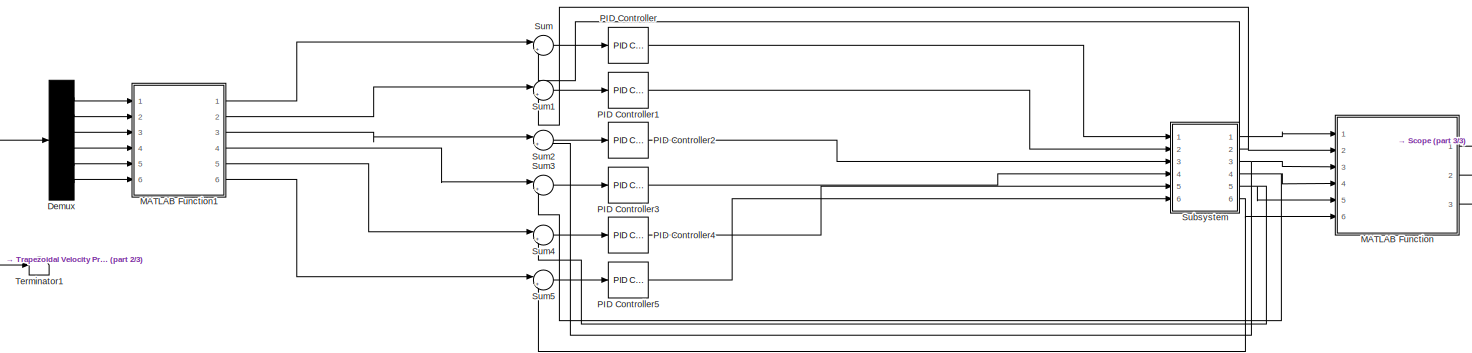
[diagram: root canvas - part 1/3, most of the canvas]
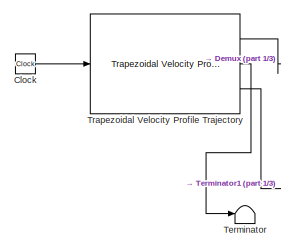
[diagram: root canvas - part 2/3, middle left region]
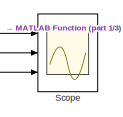
[diagram: root canvas - part 3/3, middle right region]
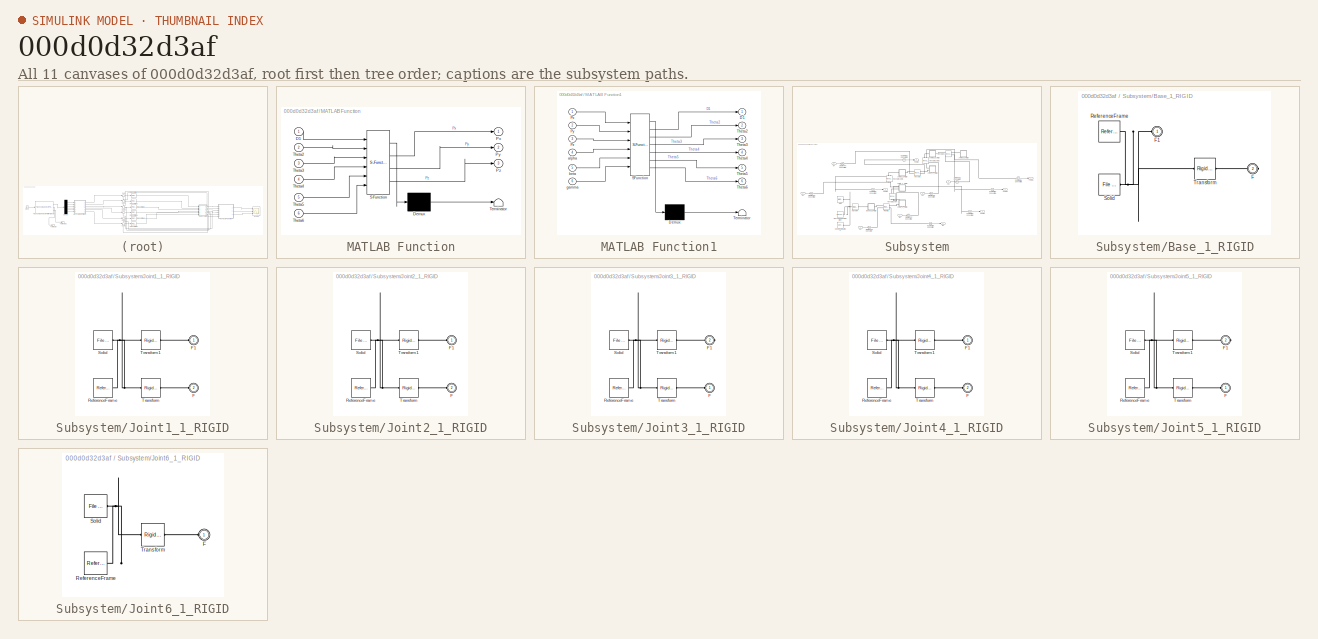
[diagram: thumbnail index - all 11 canvases of the model, root first then tree order]
MODEL slx_000d0d32d3af
KIND model
CONFIG AbsTol = auto
CONFIG EnableMultiTasking = off
CONFIG FixedStep = auto
CONFIG MaxStep = auto
CONFIG MinStep = auto
CONFIG RelTol = 1e-3
CONFIG SampleTimeConstraint = Unconstrained
CONFIG SolverName = VariableStepAuto
CONFIG StartTime = 0.0
CONFIG StopTime = 15
WORKSPACE source: external: MATLAB File  (data not in archive)
BLOCK [Clock] Clock
BLOCK [Demux] Demux
  Outputs = 6
  Ports = [1, 6]
BLOCK [SubSystem] MATLAB Function
  ErrorFcn = Stateflow.Translate.translate
  PermitHierarchicalResolution = ExplicitOnly
  Ports = [6, 3]
  RequestExecContextInheritance = off
  SFBlockType = MATLAB Function
  TreatAsAtomicUnit = on
BLOCK [Demux] MATLAB Function/ Demux 
  Outputs = 1
  Ports = [1, 1]
BLOCK [S-Function] MATLAB Function/ SFunction 
  EnableBusSupport = on
  FunctionName = sf_sfun
  PortCounts = [6 4]
  Ports = [6, 4]
  SFcnIsStateOwnerBlock = off
  SFunctionDeploymentMode = off
  Tag = Stateflow S-Function 2
BLOCK [Terminator] MATLAB Function/ Terminator 
BLOCK [Inport] MATLAB Function/D1
BLOCK [Outport] MATLAB Function/Px
BLOCK [Outport] MATLAB Function/Py
  Port = 2
BLOCK [Outport] MATLAB Function/Pz
  Port = 3
BLOCK [Inport] MATLAB Function/Theta2
  Port = 2
BLOCK [Inport] MATLAB Function/Theta3
  Port = 3
BLOCK [Inport] MATLAB Function/Theta4
  Port = 4
BLOCK [Inport] MATLAB Function/Theta5
  Port = 5
BLOCK [Inport] MATLAB Function/Theta6
  Port = 6
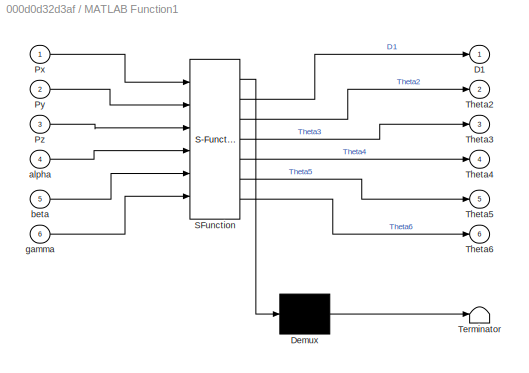
BLOCK [SubSystem] MATLAB Function1
  ErrorFcn = Stateflow.Translate.translate
  PermitHierarchicalResolution = ExplicitOnly
  Ports = [6, 6]
  RequestExecContextInheritance = off
  SFBlockType = MATLAB Function
  TreatAsAtomicUnit = on
BLOCK [Demux] MATLAB Function1/ Demux 
  Outputs = 1
  Ports = [1, 1]
BLOCK [S-Function] MATLAB Function1/ SFunction 
  EnableBusSupport = on
  FunctionName = sf_sfun
  PortCounts = [6 7]
  Ports = [6, 7]
  SFcnIsStateOwnerBlock = off
  SFunctionDeploymentMode = off
  Tag = Stateflow S-Function 1
BLOCK [Terminator] MATLAB Function1/ Terminator 
BLOCK [Outport] MATLAB Function1/D1
BLOCK [Inport] MATLAB Function1/Px
BLOCK [Inport] MATLAB Function1/Py
  Port = 2
BLOCK [Inport] MATLAB Function1/Pz
  Port = 3
BLOCK [Outport] MATLAB Function1/Theta2
  Port = 2
BLOCK [Outport] MATLAB Function1/Theta3
  Port = 3
BLOCK [Outport] MATLAB Function1/Theta4
  Port = 4
BLOCK [Outport] MATLAB Function1/Theta5
  Port = 5
BLOCK [Outport] MATLAB Function1/Theta6
  Port = 6
BLOCK [Inport] MATLAB Function1/alpha
  Port = 4
BLOCK [Inport] MATLAB Function1/beta
  Port = 5
BLOCK [Inport] MATLAB Function1/gamma
  Port = 6
BLOCK [Reference] PID Controller  REF=slpidlib/PID Controller
  Ports = [1, 1]
  SourceBlock = slpidlib/PID Controller
  SourceProductBaseCode = SL
  SourceType = PID 1dof
BLOCK [Reference] PID Controller1  REF=slpidlib/PID Controller
  Ports = [1, 1]
  SourceBlock = slpidlib/PID Controller
  SourceProductBaseCode = SL
  SourceType = PID 1dof
BLOCK [Reference] PID Controller2  REF=slpidlib/PID Controller
  Ports = [1, 1]
  SourceBlock = slpidlib/PID Controller
  SourceProductBaseCode = SL
  SourceType = PID 1dof
BLOCK [Reference] PID Controller3  REF=slpidlib/PID Controller
  Ports = [1, 1]
  SourceBlock = slpidlib/PID Controller
  SourceProductBaseCode = SL
  SourceType = PID 1dof
BLOCK [Reference] PID Controller4  REF=slpidlib/PID Controller
  Ports = [1, 1]
  SourceBlock = slpidlib/PID Controller
  SourceProductBaseCode = SL
  SourceType = PID 1dof
BLOCK [Reference] PID Controller5  REF=slpidlib/PID Controller
  Ports = [1, 1]
  SourceBlock = slpidlib/PID Controller
  SourceProductBaseCode = SL
  SourceType = PID 1dof
BLOCK [Scope] Scope
  Floating = off
  NumInputPorts = 3
  Ports = [3]
  ScopeSpecificationString = Simulink.scopes.TimeScopeBlockCfg('CurrentConfiguration', extmgr.ConfigurationSet(extmgr.Configuration('Core','General UI',true),extmgr.Configuration('Core','Source UI',true),extmgr.Configuration('Sources','WiredSimulink',true),extmgr.Configuration('Visuals','Time Domain',true,'SerializedDisplays',{struct('MinYLimReal','218.71464','MaxYLimReal','420.11442','YLabelReal','','MinYLimMag','218.71464',...<+3067ch>
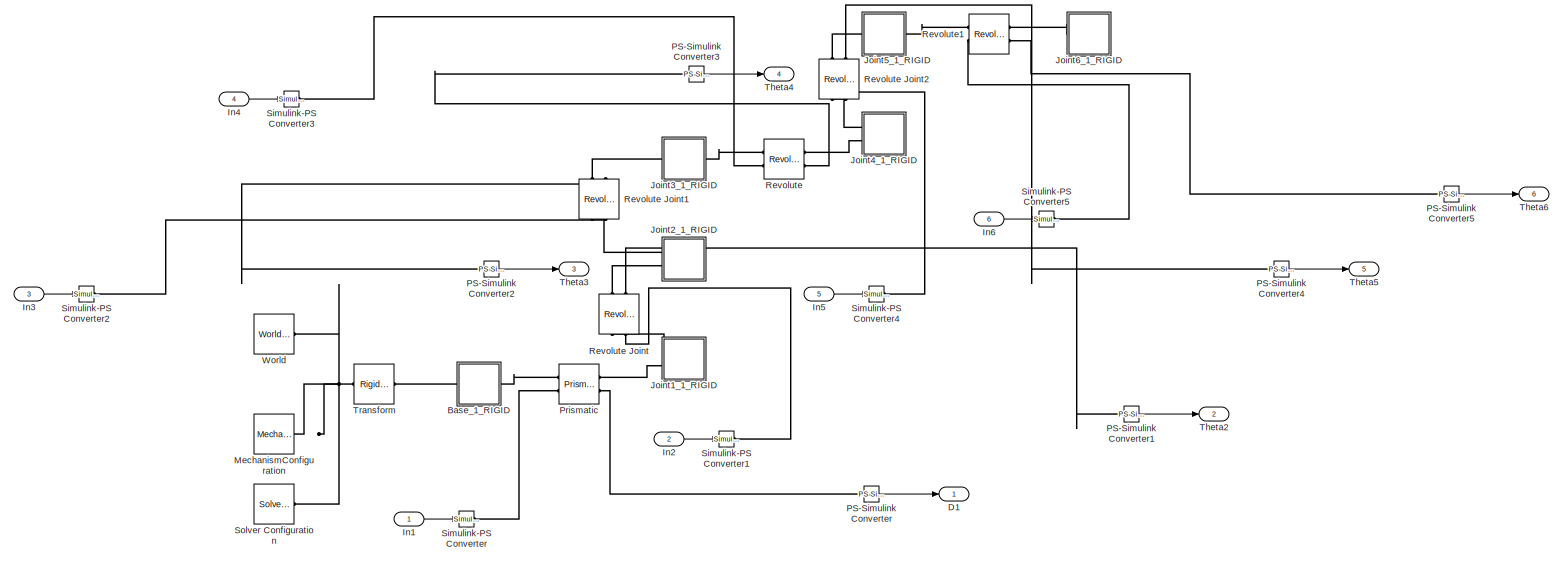
[diagram: Subsystem - part 1/1, most of the canvas]
BLOCK [SubSystem] Subsystem
  Ports = [6, 6]
  RequestExecContextInheritance = off
BLOCK [SubSystem] Subsystem/Base_1_RIGID
  Ports = [0, 0, 0, 0, 0, 1, 1]
  RequestExecContextInheritance = off
BLOCK [PMIOPort] Subsystem/Base_1_RIGID/F
  Port = 2
  Side = Right
BLOCK [PMIOPort] Subsystem/Base_1_RIGID/F1
  Side = Left
BLOCK [Reference] Subsystem/Base_1_RIGID/ReferenceFrame  REF=sm_lib/Frames and
Transforms/Reference
Frame
  Ports = [0, 0, 0, 0, 0, 0, 1]
  SourceBlock = sm_lib/Frames and\nTransforms/Reference\nFrame
  SourceProductBaseCode = MS
  SourceType = Reference\nFrame
BLOCK [Reference] Subsystem/Base_1_RIGID/Solid  REF=sm_lib/Body Elements/File Solid
  Ports = [0, 0, 0, 0, 0, 1, 1]
  SourceBlock = sm_lib/Body Elements/File Solid
  SourceProductBaseCode = MS
  SourceType = File Solid
BLOCK [Reference] Subsystem/Base_1_RIGID/Transform  REF=sm_lib/Frames and
Transforms/Rigid
Transform
  Ports = [0, 0, 0, 0, 0, 1, 1]
  SourceBlock = sm_lib/Frames and\nTransforms/Rigid\nTransform
  SourceProductBaseCode = MS
  SourceType = Rigid\nTransform
BLOCK [Outport] Subsystem/D1
BLOCK [Inport] Subsystem/In1
BLOCK [Inport] Subsystem/In2
  Port = 2
BLOCK [Inport] Subsystem/In3
  Port = 3
BLOCK [Inport] Subsystem/In4
  Port = 4
BLOCK [Inport] Subsystem/In5
  Port = 5
BLOCK [Inport] Subsystem/In6
  Port = 6
BLOCK [SubSystem] Subsystem/Joint1_1_RIGID
  Ports = [0, 0, 0, 0, 0, 2]
  RequestExecContextInheritance = off
BLOCK [PMIOPort] Subsystem/Joint1_1_RIGID/F
  Port = 2
  Side = Left
BLOCK [PMIOPort] Subsystem/Joint1_1_RIGID/F1
  Side = Left
BLOCK [Reference] Subsystem/Joint1_1_RIGID/ReferenceFrame  REF=sm_lib/Frames and
Transforms/Reference
Frame
  Ports = [0, 0, 0, 0, 0, 0, 1]
  SourceBlock = sm_lib/Frames and\nTransforms/Reference\nFrame
  SourceProductBaseCode = MS
  SourceType = Reference\nFrame
BLOCK [Reference] Subsystem/Joint1_1_RIGID/Solid  REF=sm_lib/Body Elements/File Solid
  Ports = [0, 0, 0, 0, 0, 0, 1]
  SourceBlock = sm_lib/Body Elements/File Solid
  SourceProductBaseCode = MS
  SourceType = File Solid
BLOCK [Reference] Subsystem/Joint1_1_RIGID/Transform  REF=sm_lib/Frames and
Transforms/Rigid
Transform
  Ports = [0, 0, 0, 0, 0, 1, 1]
  SourceBlock = sm_lib/Frames and\nTransforms/Rigid\nTransform
  SourceProductBaseCode = MS
  SourceType = Rigid\nTransform
BLOCK [Reference] Subsystem/Joint1_1_RIGID/Transform1  REF=sm_lib/Frames and
Transforms/Rigid
Transform
  Ports = [0, 0, 0, 0, 0, 1, 1]
  SourceBlock = sm_lib/Frames and\nTransforms/Rigid\nTransform
  SourceProductBaseCode = MS
  SourceType = Rigid\nTransform
BLOCK [SubSystem] Subsystem/Joint2_1_RIGID
  Ports = [0, 0, 0, 0, 0, 2]
  RequestExecContextInheritance = off
BLOCK [PMIOPort] Subsystem/Joint2_1_RIGID/F
  Port = 2
  Side = Left
BLOCK [PMIOPort] Subsystem/Joint2_1_RIGID/F1
  Side = Left
BLOCK [Reference] Subsystem/Joint2_1_RIGID/ReferenceFrame  REF=sm_lib/Frames and
Transforms/Reference
Frame
  Ports = [0, 0, 0, 0, 0, 0, 1]
  SourceBlock = sm_lib/Frames and\nTransforms/Reference\nFrame
  SourceProductBaseCode = MS
  SourceType = Reference\nFrame
BLOCK [Reference] Subsystem/Joint2_1_RIGID/Solid  REF=sm_lib/Body Elements/File Solid
  Ports = [0, 0, 0, 0, 0, 1, 1]
  SourceBlock = sm_lib/Body Elements/File Solid
  SourceProductBaseCode = MS
  SourceType = File Solid
BLOCK [Reference] Subsystem/Joint2_1_RIGID/Transform  REF=sm_lib/Frames and
Transforms/Rigid
Transform
  Ports = [0, 0, 0, 0, 0, 1, 1]
  SourceBlock = sm_lib/Frames and\nTransforms/Rigid\nTransform
  SourceProductBaseCode = MS
  SourceType = Rigid\nTransform
BLOCK [Reference] Subsystem/Joint2_1_RIGID/Transform1  REF=sm_lib/Frames and
Transforms/Rigid
Transform
  Ports = [0, 0, 0, 0, 0, 1, 1]
  SourceBlock = sm_lib/Frames and\nTransforms/Rigid\nTransform
  SourceProductBaseCode = MS
  SourceType = Rigid\nTransform
BLOCK [SubSystem] Subsystem/Joint3_1_RIGID
  Ports = [0, 0, 0, 0, 0, 1, 1]
  RequestExecContextInheritance = off
BLOCK [PMIOPort] Subsystem/Joint3_1_RIGID/F
  Side = Left
BLOCK [PMIOPort] Subsystem/Joint3_1_RIGID/F1
  Port = 2
  Side = Right
BLOCK [Reference] Subsystem/Joint3_1_RIGID/ReferenceFrame  REF=sm_lib/Frames and
Transforms/Reference
Frame
  Ports = [0, 0, 0, 0, 0, 0, 1]
  SourceBlock = sm_lib/Frames and\nTransforms/Reference\nFrame
  SourceProductBaseCode = MS
  SourceType = Reference\nFrame
BLOCK [Reference] Subsystem/Joint3_1_RIGID/Solid  REF=sm_lib/Body Elements/File Solid
  Ports = [0, 0, 0, 0, 0, 0, 1]
  SourceBlock = sm_lib/Body Elements/File Solid
  SourceProductBaseCode = MS
  SourceType = File Solid
BLOCK [Reference] Subsystem/Joint3_1_RIGID/Transform  REF=sm_lib/Frames and
Transforms/Rigid
Transform
  Ports = [0, 0, 0, 0, 0, 1, 1]
  SourceBlock = sm_lib/Frames and\nTransforms/Rigid\nTransform
  SourceProductBaseCode = MS
  SourceType = Rigid\nTransform
BLOCK [Reference] Subsystem/Joint3_1_RIGID/Transform1  REF=sm_lib/Frames and
Transforms/Rigid
Transform
  Ports = [0, 0, 0, 0, 0, 1, 1]
  SourceBlock = sm_lib/Frames and\nTransforms/Rigid\nTransform
  SourceProductBaseCode = MS
  SourceType = Rigid\nTransform
BLOCK [SubSystem] Subsystem/Joint4_1_RIGID
  Ports = [0, 0, 0, 0, 0, 2]
  RequestExecContextInheritance = off
BLOCK [PMIOPort] Subsystem/Joint4_1_RIGID/F
  Port = 2
  Side = Left
BLOCK [PMIOPort] Subsystem/Joint4_1_RIGID/F1
  Side = Left
BLOCK [Reference] Subsystem/Joint4_1_RIGID/ReferenceFrame  REF=sm_lib/Frames and
Transforms/Reference
Frame
  Ports = [0, 0, 0, 0, 0, 0, 1]
  SourceBlock = sm_lib/Frames and\nTransforms/Reference\nFrame
  SourceProductBaseCode = MS
  SourceType = Reference\nFrame
BLOCK [Reference] Subsystem/Joint4_1_RIGID/Solid  REF=sm_lib/Body Elements/File Solid
  Ports = [0, 0, 0, 0, 0, 0, 1]
  SourceBlock = sm_lib/Body Elements/File Solid
  SourceProductBaseCode = MS
  SourceType = File Solid
BLOCK [Reference] Subsystem/Joint4_1_RIGID/Transform  REF=sm_lib/Frames and
Transforms/Rigid
Transform
  Ports = [0, 0, 0, 0, 0, 1, 1]
  SourceBlock = sm_lib/Frames and\nTransforms/Rigid\nTransform
  SourceProductBaseCode = MS
  SourceType = Rigid\nTransform
BLOCK [Reference] Subsystem/Joint4_1_RIGID/Transform1  REF=sm_lib/Frames and
Transforms/Rigid
Transform
  Ports = [0, 0, 0, 0, 0, 1, 1]
  SourceBlock = sm_lib/Frames and\nTransforms/Rigid\nTransform
  SourceProductBaseCode = MS
  SourceType = Rigid\nTransform
BLOCK [SubSystem] Subsystem/Joint5_1_RIGID
  Ports = [0, 0, 0, 0, 0, 1, 1]
  RequestExecContextInheritance = off
BLOCK [PMIOPort] Subsystem/Joint5_1_RIGID/F
  Side = Left
BLOCK [PMIOPort] Subsystem/Joint5_1_RIGID/F1
  Port = 2
  Side = Right
BLOCK [Reference] Subsystem/Joint5_1_RIGID/ReferenceFrame  REF=sm_lib/Frames and
Transforms/Reference
Frame
  Ports = [0, 0, 0, 0, 0, 0, 1]
  SourceBlock = sm_lib/Frames and\nTransforms/Reference\nFrame
  SourceProductBaseCode = MS
  SourceType = Reference\nFrame
BLOCK [Reference] Subsystem/Joint5_1_RIGID/Solid  REF=sm_lib/Body Elements/File Solid
  Ports = [0, 0, 0, 0, 0, 0, 1]
  SourceBlock = sm_lib/Body Elements/File Solid
  SourceProductBaseCode = MS
  SourceType = File Solid
BLOCK [Reference] Subsystem/Joint5_1_RIGID/Transform  REF=sm_lib/Frames and
Transforms/Rigid
Transform
  Ports = [0, 0, 0, 0, 0, 1, 1]
  SourceBlock = sm_lib/Frames and\nTransforms/Rigid\nTransform
  SourceProductBaseCode = MS
  SourceType = Rigid\nTransform
BLOCK [Reference] Subsystem/Joint5_1_RIGID/Transform1  REF=sm_lib/Frames and
Transforms/Rigid
Transform
  Ports = [0, 0, 0, 0, 0, 1, 1]
  SourceBlock = sm_lib/Frames and\nTransforms/Rigid\nTransform
  SourceProductBaseCode = MS
  SourceType = Rigid\nTransform
BLOCK [SubSystem] Subsystem/Joint6_1_RIGID
  Ports = [0, 0, 0, 0, 0, 1]
  RequestExecContextInheritance = off
BLOCK [PMIOPort] Subsystem/Joint6_1_RIGID/F
  Side = Left
BLOCK [Reference] Subsystem/Joint6_1_RIGID/ReferenceFrame  REF=sm_lib/Frames and
Transforms/Reference
Frame
  Ports = [0, 0, 0, 0, 0, 0, 1]
  SourceBlock = sm_lib/Frames and\nTransforms/Reference\nFrame
  SourceProductBaseCode = MS
  SourceType = Reference\nFrame
BLOCK [Reference] Subsystem/Joint6_1_RIGID/Solid  REF=sm_lib/Body Elements/File Solid
  Ports = [0, 0, 0, 0, 0, 0, 1]
  SourceBlock = sm_lib/Body Elements/File Solid
  SourceProductBaseCode = MS
  SourceType = File Solid
BLOCK [Reference] Subsystem/Joint6_1_RIGID/Transform  REF=sm_lib/Frames and
Transforms/Rigid
Transform
  Ports = [0, 0, 0, 0, 0, 1, 1]
  SourceBlock = sm_lib/Frames and\nTransforms/Rigid\nTransform
  SourceProductBaseCode = MS
  SourceType = Rigid\nTransform
BLOCK [Reference] Subsystem/MechanismConfiguration  REF=sm_lib/Utilities/Mechanism
Configuration
  Ports = [0, 0, 0, 0, 0, 0, 1]
  SourceBlock = sm_lib/Utilities/Mechanism\nConfiguration
  SourceProductBaseCode = MS
  SourceType = Mechanism\nConfiguration
BLOCK [Reference] Subsystem/PS-Simulink Converter  REF=nesl_utility/PS-Simulink
Converter
  Ports = [0, 1, 0, 0, 0, 1]
  SourceBlock = nesl_utility/PS-Simulink\nConverter
  SourceProductBaseCode = SS,PW,VE
  SourceType = PS-Simulink\nConverter
BLOCK [Reference] Subsystem/PS-Simulink Converter1  REF=nesl_utility/PS-Simulink
Converter
  Ports = [0, 1, 0, 0, 0, 1]
  SourceBlock = nesl_utility/PS-Simulink\nConverter
  SourceProductBaseCode = SS,PW,VE
  SourceType = PS-Simulink\nConverter
BLOCK [Reference] Subsystem/PS-Simulink Converter2  REF=nesl_utility/PS-Simulink
Converter
  Ports = [0, 1, 0, 0, 0, 1]
  SourceBlock = nesl_utility/PS-Simulink\nConverter
  SourceProductBaseCode = SS,PW,VE
  SourceType = PS-Simulink\nConverter
BLOCK [Reference] Subsystem/PS-Simulink Converter3  REF=nesl_utility/PS-Simulink
Converter
  Ports = [0, 1, 0, 0, 0, 1]
  SourceBlock = nesl_utility/PS-Simulink\nConverter
  SourceProductBaseCode = SS,PW,VE
  SourceType = PS-Simulink\nConverter
BLOCK [Reference] Subsystem/PS-Simulink Converter4  REF=nesl_utility/PS-Simulink
Converter
  Ports = [0, 1, 0, 0, 0, 1]
  SourceBlock = nesl_utility/PS-Simulink\nConverter
  SourceProductBaseCode = SS,PW,VE
  SourceType = PS-Simulink\nConverter
BLOCK [Reference] Subsystem/PS-Simulink Converter5  REF=nesl_utility/PS-Simulink
Converter
  Ports = [0, 1, 0, 0, 0, 1]
  SourceBlock = nesl_utility/PS-Simulink\nConverter
  SourceProductBaseCode = SS,PW,VE
  SourceType = PS-Simulink\nConverter
BLOCK [Reference] Subsystem/Prismatic  REF=sm_lib/Joints/Prismatic
Joint
  Ports = [0, 0, 0, 0, 0, 2, 2]
  SourceBlock = sm_lib/Joints/Prismatic\nJoint
  SourceProductBaseCode = MS
  SourceType = Prismatic\nJoint
BLOCK [Reference] Subsystem/Revolute  REF=sm_lib/Joints/Revolute Joint
  Ports = [0, 0, 0, 0, 0, 2, 2]
  SourceBlock = sm_lib/Joints/Revolute Joint
  SourceProductBaseCode = MS
  SourceType = Revolute Joint
BLOCK [Reference] Subsystem/Revolute Joint  REF=sm_lib/Joints/Revolute Joint
  NameLocation = right
  Ports = [0, 0, 0, 0, 0, 2, 2]
  SourceBlock = sm_lib/Joints/Revolute Joint
  SourceProductBaseCode = MS
  SourceType = Revolute Joint
BLOCK [Reference] Subsystem/Revolute Joint1  REF=sm_lib/Joints/Revolute Joint
  NameLocation = right
  Ports = [0, 0, 0, 0, 0, 2, 2]
  SourceBlock = sm_lib/Joints/Revolute Joint
  SourceProductBaseCode = MS
  SourceType = Revolute Joint
BLOCK [Reference] Subsystem/Revolute Joint2  REF=sm_lib/Joints/Revolute Joint
  NameLocation = right
  Ports = [0, 0, 0, 0, 0, 2, 2]
  SourceBlock = sm_lib/Joints/Revolute Joint
  SourceProductBaseCode = MS
  SourceType = Revolute Joint
BLOCK [Reference] Subsystem/Revolute1  REF=sm_lib/Joints/Revolute Joint
  Ports = [0, 0, 0, 0, 0, 2, 2]
  SourceBlock = sm_lib/Joints/Revolute Joint
  SourceProductBaseCode = MS
  SourceType = Revolute Joint
BLOCK [Reference] Subsystem/Simulink-PS Converter  REF=nesl_utility/Simulink-PS
Converter
  Ports = [1, 0, 0, 0, 0, 0, 1]
  SourceBlock = nesl_utility/Simulink-PS\nConverter
  SourceProductBaseCode = SS,PW,VE
  SourceType = Simulink-PS\nConverter
BLOCK [Reference] Subsystem/Simulink-PS Converter1  REF=nesl_utility/Simulink-PS
Converter
  Ports = [1, 0, 0, 0, 0, 0, 1]
  SourceBlock = nesl_utility/Simulink-PS\nConverter
  SourceProductBaseCode = SS,PW,VE
  SourceType = Simulink-PS\nConverter
BLOCK [Reference] Subsystem/Simulink-PS Converter2  REF=nesl_utility/Simulink-PS
Converter
  Ports = [1, 0, 0, 0, 0, 0, 1]
  SourceBlock = nesl_utility/Simulink-PS\nConverter
  SourceProductBaseCode = SS,PW,VE
  SourceType = Simulink-PS\nConverter
BLOCK [Reference] Subsystem/Simulink-PS Converter3  REF=nesl_utility/Simulink-PS
Converter
  Ports = [1, 0, 0, 0, 0, 0, 1]
  SourceBlock = nesl_utility/Simulink-PS\nConverter
  SourceProductBaseCode = SS,PW,VE
  SourceType = Simulink-PS\nConverter
BLOCK [Reference] Subsystem/Simulink-PS Converter4  REF=nesl_utility/Simulink-PS
Converter
  Ports = [1, 0, 0, 0, 0, 0, 1]
  SourceBlock = nesl_utility/Simulink-PS\nConverter
  SourceProductBaseCode = SS,PW,VE
  SourceType = Simulink-PS\nConverter
BLOCK [Reference] Subsystem/Simulink-PS Converter5  REF=nesl_utility/Simulink-PS
Converter
  Ports = [1, 0, 0, 0, 0, 0, 1]
  SourceBlock = nesl_utility/Simulink-PS\nConverter
  SourceProductBaseCode = SS,PW,VE
  SourceType = Simulink-PS\nConverter
BLOCK [Reference] Subsystem/Solver Configuration  REF=nesl_utility/Solver
Configuration
  Ports = [0, 0, 0, 0, 0, 0, 1]
  SourceBlock = nesl_utility/Solver\nConfiguration
  SourceProductBaseCode = SS,PW,VE
  SourceType = Solver\nConfiguration
BLOCK [Outport] Subsystem/Theta2
  Port = 2
BLOCK [Outport] Subsystem/Theta3
  Port = 3
BLOCK [Outport] Subsystem/Theta4
  Port = 4
BLOCK [Outport] Subsystem/Theta5
  Port = 5
BLOCK [Outport] Subsystem/Theta6
  Port = 6
BLOCK [Reference] Subsystem/Transform  REF=sm_lib/Frames and
Transforms/Rigid
Transform
  Ports = [0, 0, 0, 0, 0, 1, 1]
  SourceBlock = sm_lib/Frames and\nTransforms/Rigid\nTransform
  SourceProductBaseCode = MS
  SourceType = Rigid\nTransform
BLOCK [Reference] Subsystem/World  REF=sm_lib/Frames and
Transforms/World Frame
  Ports = [0, 0, 0, 0, 0, 0, 1]
  SourceBlock = sm_lib/Frames and\nTransforms/World Frame
  SourceProductBaseCode = MS
  SourceType = World Frame
BLOCK [Sum] Sum
  Inputs = |+-
  Ports = [2, 1]
BLOCK [Sum] Sum1
  Inputs = |+-
  Ports = [2, 1]
BLOCK [Sum] Sum2
  Inputs = |+-
  Ports = [2, 1]
BLOCK [Sum] Sum3
  Inputs = |+-
  Ports = [2, 1]
BLOCK [Sum] Sum4
  Inputs = |+-
  Ports = [2, 1]
BLOCK [Sum] Sum5
  Inputs = |+-
  Ports = [2, 1]
BLOCK [Terminator] Terminator
BLOCK [Terminator] Terminator1
BLOCK [Reference] Trapezoidal Velocity Profile Trajectory  REF=robotcorelib/Trapezoidal Velocity Profile Trajectory
  Ports = [1, 3]
  SourceBlock = robotcorelib/Trapezoidal Velocity Profile Trajectory
  SourceProductBaseCode = RO,NV,RR,UV
  SourceType = robotics.slcore.internal.block.TrapVelTrajSys
LINE Clock:1 -> Trapezoidal Velocity Profile Trajectory:1
LINE Demux:1 -> MATLAB Function1:1
LINE Demux:2 -> MATLAB Function1:2
LINE Demux:3 -> MATLAB Function1:3
LINE Demux:4 -> MATLAB Function1:4
LINE Demux:5 -> MATLAB Function1:5
LINE Demux:6 -> MATLAB Function1:6
LINE MATLAB Function1:1 -> Sum:1
LINE MATLAB Function1:2 -> Sum1:1
LINE MATLAB Function1:3 -> Sum2:1
LINE MATLAB Function1:4 -> Sum3:1
LINE MATLAB Function1:5 -> Sum4:1
LINE MATLAB Function1:6 -> Sum5:1
LINE MATLAB Function:1 -> Scope:1
LINE MATLAB Function:2 -> Scope:2
LINE MATLAB Function:3 -> Scope:3
LINE PID Controller1:1 -> Subsystem:2
LINE PID Controller2:1 -> Subsystem:3
LINE PID Controller3:1 -> Subsystem:4
LINE PID Controller4:1 -> Subsystem:5
LINE PID Controller5:1 -> Subsystem:6
LINE PID Controller:1 -> Subsystem:1
LINE Subsystem/In1:1 -> Subsystem/Simulink-PS Converter:1
LINE Subsystem/In2:1 -> Subsystem/Simulink-PS Converter1:1
LINE Subsystem/In3:1 -> Subsystem/Simulink-PS Converter2:1
LINE Subsystem/In4:1 -> Subsystem/Simulink-PS Converter3:1
LINE Subsystem/In5:1 -> Subsystem/Simulink-PS Converter4:1
LINE Subsystem/In6:1 -> Subsystem/Simulink-PS Converter5:1
LINE Subsystem/PS-Simulink Converter1:1 -> Subsystem/Theta2:1
LINE Subsystem/PS-Simulink Converter2:1 -> Subsystem/Theta3:1
LINE Subsystem/PS-Simulink Converter3:1 -> Subsystem/Theta4:1
LINE Subsystem/PS-Simulink Converter4:1 -> Subsystem/Theta5:1
LINE Subsystem/PS-Simulink Converter5:1 -> Subsystem/Theta6:1
LINE Subsystem/PS-Simulink Converter:1 -> Subsystem/D1:1
NET Subsystem:1 -> MATLAB Function:1, Sum:2
NET Subsystem:2 -> MATLAB Function:2, Sum1:2
NET Subsystem:3 -> MATLAB Function:3, Sum2:2
NET Subsystem:4 -> MATLAB Function:4, Sum3:2
NET Subsystem:5 -> MATLAB Function:5, Sum4:2
NET Subsystem:6 -> MATLAB Function:6, Sum5:2
LINE Sum1:1 -> PID Controller1:1
LINE Sum2:1 -> PID Controller2:1
LINE Sum3:1 -> PID Controller3:1
LINE Sum4:1 -> PID Controller4:1
LINE Sum5:1 -> PID Controller5:1
LINE Sum:1 -> PID Controller:1
LINE Trapezoidal Velocity Profile Trajectory:1 -> Demux:1
LINE Trapezoidal Velocity Profile Trajectory:2 -> Terminator:1
LINE Trapezoidal Velocity Profile Trajectory:3 -> Terminator1:1
PNET net1: Subsystem/Base_1_RIGID/F1:RConn1 -- Subsystem/Base_1_RIGID/ReferenceFrame:RConn1 -- Subsystem/Base_1_RIGID/Solid:RConn1 -- Subsystem/Base_1_RIGID/Transform:LConn1
PLINE Subsystem/Base_1_RIGID/F:RConn1 -- Subsystem/Base_1_RIGID/Transform:RConn1
PLINE Subsystem/Base_1_RIGID:LConn1 -- Subsystem/Transform:RConn1
PLINE Subsystem/Base_1_RIGID:RConn1 -- Subsystem/Prismatic:LConn1
PLINE Subsystem/Joint1_1_RIGID/F1:RConn1 -- Subsystem/Joint1_1_RIGID/Transform1:RConn1
PLINE Subsystem/Joint1_1_RIGID/F:RConn1 -- Subsystem/Joint1_1_RIGID/Transform:RConn1
PNET net2: Subsystem/Joint1_1_RIGID/ReferenceFrame:RConn1 -- Subsystem/Joint1_1_RIGID/Solid:RConn1 -- Subsystem/Joint1_1_RIGID/Transform1:LConn1 -- Subsystem/Joint1_1_RIGID/Transform:LConn1
PLINE Subsystem/Joint1_1_RIGID:LConn1 -- Subsystem/Revolute Joint:LConn1
PLINE Subsystem/Joint1_1_RIGID:LConn2 -- Subsystem/Prismatic:RConn1
PLINE Subsystem/Joint2_1_RIGID/F1:RConn1 -- Subsystem/Joint2_1_RIGID/Transform1:RConn1
PLINE Subsystem/Joint2_1_RIGID/F:RConn1 -- Subsystem/Joint2_1_RIGID/Transform:RConn1
PNET net3: Subsystem/Joint2_1_RIGID/ReferenceFrame:RConn1 -- Subsystem/Joint2_1_RIGID/Solid:RConn1 -- Subsystem/Joint2_1_RIGID/Transform1:LConn1 -- Subsystem/Joint2_1_RIGID/Transform:LConn1
PLINE Subsystem/Joint2_1_RIGID:LConn1 -- Subsystem/Revolute Joint1:LConn1
PLINE Subsystem/Joint2_1_RIGID:LConn2 -- Subsystem/Revolute Joint:RConn1
PLINE Subsystem/Joint3_1_RIGID/F1:RConn1 -- Subsystem/Joint3_1_RIGID/Transform1:RConn1
PLINE Subsystem/Joint3_1_RIGID/F:RConn1 -- Subsystem/Joint3_1_RIGID/Transform:RConn1
PNET net4: Subsystem/Joint3_1_RIGID/ReferenceFrame:RConn1 -- Subsystem/Joint3_1_RIGID/Solid:RConn1 -- Subsystem/Joint3_1_RIGID/Transform1:LConn1 -- Subsystem/Joint3_1_RIGID/Transform:LConn1
PLINE Subsystem/Joint3_1_RIGID:LConn1 -- Subsystem/Revolute Joint1:RConn1
PLINE Subsystem/Joint3_1_RIGID:RConn1 -- Subsystem/Revolute:LConn1
PLINE Subsystem/Joint4_1_RIGID/F1:RConn1 -- Subsystem/Joint4_1_RIGID/Transform1:RConn1
PLINE Subsystem/Joint4_1_RIGID/F:RConn1 -- Subsystem/Joint4_1_RIGID/Transform:RConn1
PNET net5: Subsystem/Joint4_1_RIGID/ReferenceFrame:RConn1 -- Subsystem/Joint4_1_RIGID/Solid:RConn1 -- Subsystem/Joint4_1_RIGID/Transform1:LConn1 -- Subsystem/Joint4_1_RIGID/Transform:LConn1
PLINE Subsystem/Joint4_1_RIGID:LConn1 -- Subsystem/Revolute Joint2:LConn1
PLINE Subsystem/Joint4_1_RIGID:LConn2 -- Subsystem/Revolute:RConn1
PLINE Subsystem/Joint5_1_RIGID/F1:RConn1 -- Subsystem/Joint5_1_RIGID/Transform1:RConn1
PLINE Subsystem/Joint5_1_RIGID/F:RConn1 -- Subsystem/Joint5_1_RIGID/Transform:RConn1
PNET net6: Subsystem/Joint5_1_RIGID/ReferenceFrame:RConn1 -- Subsystem/Joint5_1_RIGID/Solid:RConn1 -- Subsystem/Joint5_1_RIGID/Transform1:LConn1 -- Subsystem/Joint5_1_RIGID/Transform:LConn1
PLINE Subsystem/Joint5_1_RIGID:LConn1 -- Subsystem/Revolute Joint2:RConn1
PLINE Subsystem/Joint5_1_RIGID:RConn1 -- Subsystem/Revolute1:LConn1
PLINE Subsystem/Joint6_1_RIGID/F:RConn1 -- Subsystem/Joint6_1_RIGID/Transform:RConn1
PNET net7: Subsystem/Joint6_1_RIGID/ReferenceFrame:RConn1 -- Subsystem/Joint6_1_RIGID/Solid:RConn1 -- Subsystem/Joint6_1_RIGID/Transform:LConn1
PLINE Subsystem/Joint6_1_RIGID:LConn1 -- Subsystem/Revolute1:RConn1
PNET net8: Subsystem/MechanismConfiguration:RConn1 -- Subsystem/Solver Configuration:RConn1 -- Subsystem/Transform:LConn1 -- Subsystem/World:RConn1
PLINE Subsystem/PS-Simulink Converter1:LConn1 -- Subsystem/Revolute Joint:RConn2
PLINE Subsystem/PS-Simulink Converter2:LConn1 -- Subsystem/Revolute Joint1:RConn2
PLINE Subsystem/PS-Simulink Converter3:LConn1 -- Subsystem/Revolute:RConn2
PLINE Subsystem/PS-Simulink Converter4:LConn1 -- Subsystem/Revolute Joint2:RConn2
PLINE Subsystem/PS-Simulink Converter5:LConn1 -- Subsystem/Revolute1:RConn2
PLINE Subsystem/PS-Simulink Converter:LConn1 -- Subsystem/Prismatic:RConn2
PLINE Subsystem/Prismatic:LConn2 -- Subsystem/Simulink-PS Converter:RConn1
PLINE Subsystem/Revolute Joint1:LConn2 -- Subsystem/Simulink-PS Converter2:RConn1
PLINE Subsystem/Revolute Joint2:LConn2 -- Subsystem/Simulink-PS Converter4:RConn1
PLINE Subsystem/Revolute Joint:LConn2 -- Subsystem/Simulink-PS Converter1:RConn1
PLINE Subsystem/Revolute1:LConn2 -- Subsystem/Simulink-PS Converter5:RConn1
PLINE Subsystem/Revolute:LConn2 -- Subsystem/Simulink-PS Converter3:RConn1
note: NET lines group one-source signal fan-out (src -> all destinations, sorted); 1:1 wires keep LINE; PNET lines group multi-terminal physical nets as a canonical sorted terminal list (undirected conserving connections); 2-terminal nets keep the pairwise PLINE form
CHART MATLAB Function1 states=1 transitions=1
  STATE_LABEL 'eML_blk_kernel()'
  STATE_LABEL 'SCRIPT:\nfunction [D1, Theta2, Theta3, Theta4, Theta5, Theta6] = Inverse(Px, Py, Pz, alpha, beta, gamma)\n\n% Inverse Kinematics for Theta2 and Theta3\n\nTheta4=0; Theta5=0; Theta6=0;\n\n%Set A Data\n% d1 = 4;\n% a2 = 5;\n% a3 = 4.5;\n% d4 = 3.7;\n% Px = 3.7;\n% Py = d1;\n% Pz = 9.5;\n\n%Set B Data\n% d1 = 200;\n% a2 = 270;\n% a3 = 200;\n% d4 = 240;\n% Px = 160.2544;\n% Py = d1;\n% Pz = 233.4315;\n% Px = eval(T06(1,4));\n...<+3231ch>'
CHART MATLAB Function states=1 transitions=1
  STATE_LABEL 'eML_blk_kernel()'
  STATE_LABEL 'SCRIPT:\nfunction [Px, Py, Pz] = Forward(D1, Theta2, Theta3, Theta4, Theta5, Theta6)\n\n%Defining the Symbolic Variables\n%  syms Theta4 Theta5 Theta6  a2 a3 d4 D1 \n\n% Validation of Forward Kinematics\n% theta2 = 0;\n% theta3 = 0;\n% theta4 = 0;\n% theta5 = 0;\n% theta6 = 0;\n\n% Set A Data according to the design dimensions\nd1 = 200;\na2 = 270;\na3 = 200;\nd4 = 240;\n\n\nfunction T = DHFUNCTION(ai,alphai,di,theta...<+823ch>'
CHART  states=0 transitions=0
CHART  states=0 transitions=0
